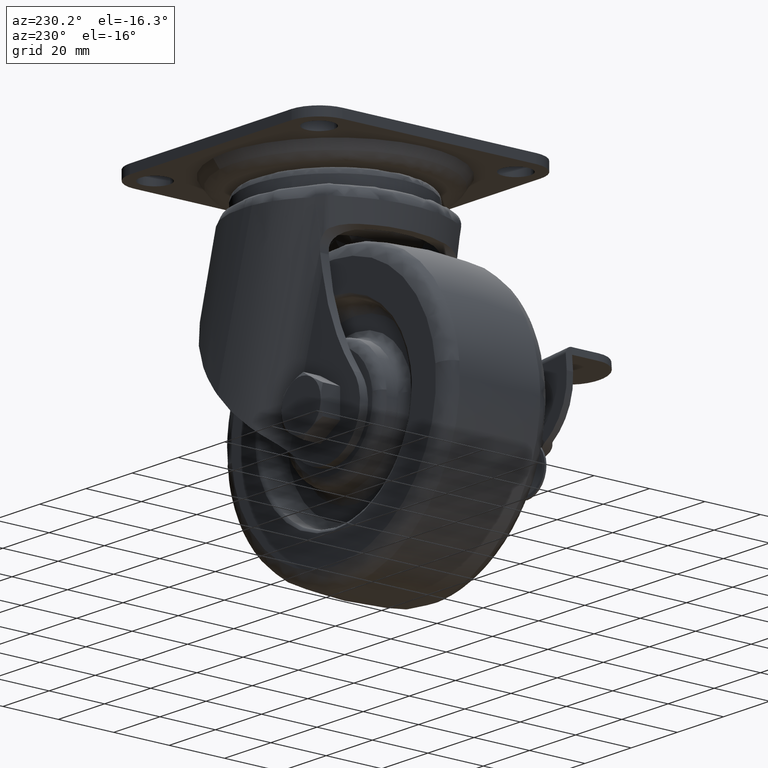
[diagram: clean part render]
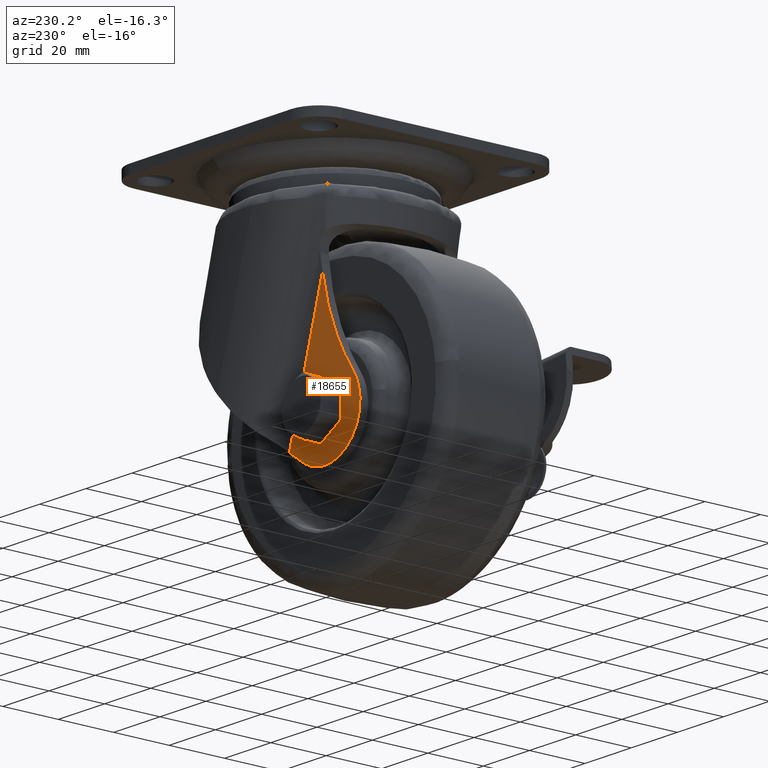
[diagram: same view with one face highlighted and labeled with its STEP entity id]
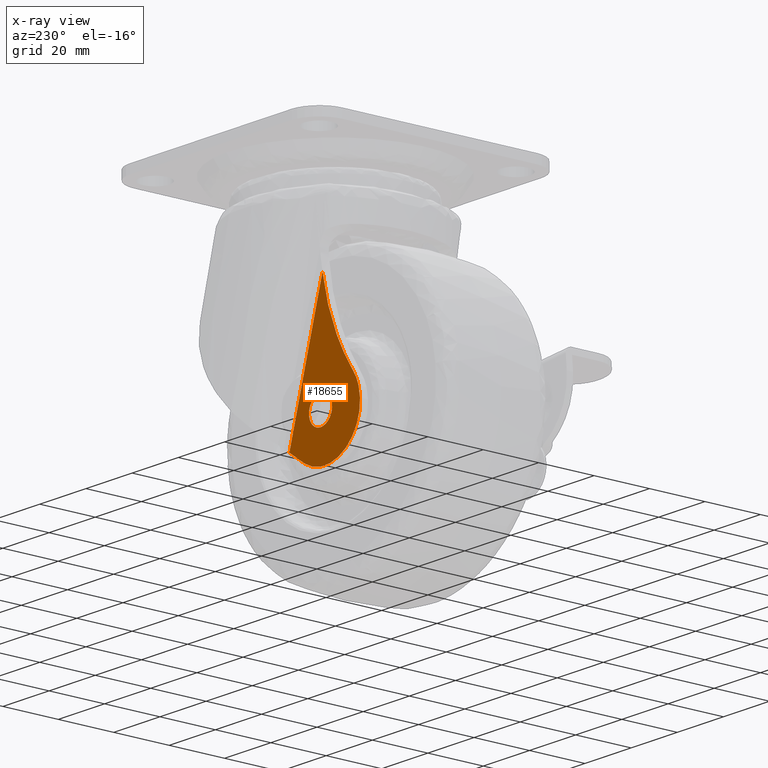
[diagram: x-ray of the same camera — body ghosted, the highlighted face saturated]
A machine part, auxiliary view. The second image highlights one B-rep face of the part: STEP entity #18655.
The next image is the same camera in x-ray: the body ghosted, the highlighted face saturated — about 0% of this face is hidden behind the body in this view.
In plain terms, the highlighted face is a freeform B-spline surface patch.
Its self-contained STEP definition (entity closure, byte-faithful):
#16529=CARTESIAN_POINT('',(-26.994555841984049,23.699999999999999,-80.393280069836919));
#16530=VERTEX_POINT('',#16529);
#16536=CARTESIAN_POINT('',(-22.0,23.699999999999999,-74.990199999999987));
#16537=VERTEX_POINT('',#16536);
#16538=CARTESIAN_POINT('',(-26.994555841984049,23.700000000000003,-80.393280069836933));
#16539=CARTESIAN_POINT('',(-27.009999999999994,23.699999999999996,-80.197043436229194));
#16540=CARTESIAN_POINT('',(-27.010000000000002,23.699999999999999,-80.000199999999992));
#16541=CARTESIAN_POINT('',(-27.009999999999998,23.700000000000003,-74.990199999999987));
#16542=CARTESIAN_POINT('',(-22.0,23.699999999999999,-74.990199999999987));
#16550=(BOUNDED_CURVE()B_SPLINE_CURVE(2,(#16538,#16539,#16540,#16541,#16542),.UNSPECIFIED.,.F.,.U.)B_SPLINE_CURVE_WITH_KNOTS((3,2,3),(0.736331300624515,0.750000000000000,1.0),.UNSPECIFIED.)CURVE()GEOMETRIC_REPRESENTATION_ITEM()RATIONAL_B_SPLINE_CURVE((0.969723356154594,0.983986122571683,1.0,0.707106781186548,1.0))REPRESENTATION_ITEM(''));
#16551=EDGE_CURVE('',#16530,#16537,#16550,.T.);
#16553=CARTESIAN_POINT('',(-17.005444158015958,23.699999999999999,-79.607119930163066));
#16554=VERTEX_POINT('',#16553);
#16555=CARTESIAN_POINT('',(-22.0,23.699999999999999,-74.990199999999987));
#16556=CARTESIAN_POINT('',(-17.368803637015994,23.699999999999992,-74.990199999999973));
#16557=CARTESIAN_POINT('',(-17.005444158015948,23.699999999999999,-79.607119930163080));
#16565=(BOUNDED_CURVE()B_SPLINE_CURVE(2,(#16555,#16556,#16557),.UNSPECIFIED.,.F.,.U.)B_SPLINE_CURVE_WITH_KNOTS((3,3),(0.0,0.236331300624515),.UNSPECIFIED.)CURVE()GEOMETRIC_REPRESENTATION_ITEM()RATIONAL_B_SPLINE_CURVE((1.0,0.723120658614864,0.969723356154595))REPRESENTATION_ITEM(''));
#16566=EDGE_CURVE('',#16537,#16554,#16565,.T.);
#16612=CARTESIAN_POINT('',(-22.0,23.699999999999999,-85.010199999999998));
#16613=VERTEX_POINT('',#16612);
#16614=CARTESIAN_POINT('',(-17.005444158015948,23.699999999999999,-79.607119930163066));
#16615=CARTESIAN_POINT('',(-16.990000000000002,23.699999999999999,-79.803356563770805));
#16616=CARTESIAN_POINT('',(-16.989999999999998,23.699999999999999,-80.000199999999992));
#16617=CARTESIAN_POINT('',(-16.989999999999995,23.700000000000003,-85.010200000000012));
#16618=CARTESIAN_POINT('',(-22.0,23.699999999999999,-85.010199999999998));
#16626=(BOUNDED_CURVE()B_SPLINE_CURVE(2,(#16614,#16615,#16616,#16617,#16618),.UNSPECIFIED.,.F.,.U.)B_SPLINE_CURVE_WITH_KNOTS((3,2,3),(0.236331300624515,0.250000000000000,0.500000000000000),.UNSPECIFIED.)CURVE()GEOMETRIC_REPRESENTATION_ITEM()RATIONAL_B_SPLINE_CURVE((0.969723356154595,0.983986122571683,1.0,0.707106781186548,1.0))REPRESENTATION_ITEM(''));
#16627=EDGE_CURVE('',#16554,#16613,#16626,.T.);
#16629=CARTESIAN_POINT('',(-22.0,23.699999999999999,-85.010199999999998));
#16630=CARTESIAN_POINT('',(-26.631196362983989,23.699999999999999,-85.010200000000026));
#16631=CARTESIAN_POINT('',(-26.994555841984049,23.700000000000003,-80.393280069836948));
#16639=(BOUNDED_CURVE()B_SPLINE_CURVE(2,(#16629,#16630,#16631),.UNSPECIFIED.,.F.,.U.)B_SPLINE_CURVE_WITH_KNOTS((3,3),(0.500000000000000,0.736331300624515),.UNSPECIFIED.)CURVE()GEOMETRIC_REPRESENTATION_ITEM()RATIONAL_B_SPLINE_CURVE((1.0,0.723120658614865,0.969723356154593))REPRESENTATION_ITEM(''));
#16640=EDGE_CURVE('',#16613,#16530,#16639,.T.);
#18030=CARTESIAN_POINT('',(-22.848104331939549,23.699999999999999,-40.233395826008397));
#18031=VERTEX_POINT('',#18030);
#18041=CARTESIAN_POINT('',(-36.138694771212847,23.699999999999999,-71.887857911865112));
#18042=VERTEX_POINT('',#18041);
#18043=CARTESIAN_POINT('',(-22.848104331939521,23.699999999999999,-40.233395826008412));
#18044=CARTESIAN_POINT('',(-25.772148349685477,23.700000000000003,-57.623048795799349));
#18045=CARTESIAN_POINT('',(-36.138695005206692,23.699999999999999,-71.887857741816688));
#18053=(BOUNDED_CURVE()B_SPLINE_CURVE(2,(#18043,#18044,#18045),.UNSPECIFIED.,.F.,.U.)CURVE()GEOMETRIC_REPRESENTATION_ITEM()QUASI_UNIFORM_CURVE()RATIONAL_B_SPLINE_CURVE((1.0,0.973455591417076,1.0))REPRESENTATION_ITEM(''));
#18054=EDGE_CURVE('',#18031,#18042,#18053,.T.);
#18177=CARTESIAN_POINT('',(-15.154456622378950,23.699999999999999,-93.997029754928505));
#18178=VERTEX_POINT('',#18177);
#18210=CARTESIAN_POINT('',(-15.154456622378950,23.699999999999999,-93.997029754928505));
#18211=CARTESIAN_POINT('',(-16.328478772490559,23.700000000000021,-94.760462994457242));
#18212=CARTESIAN_POINT('',(-18.629609485815639,23.699999999999971,-95.845009369545508));
#18213=CARTESIAN_POINT('',(-21.889834844470020,23.700000000000021,-96.494847509529947));
#18214=CARTESIAN_POINT('',(-24.305274605307059,23.699999999999982,-96.524809248768150));
#18215=CARTESIAN_POINT('',(-26.367275543384579,23.700000000000021,-96.292471943051737));
#18216=CARTESIAN_POINT('',(-28.606244652223442,23.700000000000010,-95.752046790735591));
#18217=CARTESIAN_POINT('',(-31.031919328711439,23.700000000000010,-94.696763154491634));
#18218=CARTESIAN_POINT('',(-33.414781137797341,23.699999999999900,-93.103850885481506));
#18219=CARTESIAN_POINT('',(-35.317306872206167,23.700000000000351,-91.266009947194320));
#18220=CARTESIAN_POINT('',(-36.771827063975742,23.699999999999282,-89.267504685815950));
#18221=CARTESIAN_POINT('',(-37.825129031142531,23.700000000001879,-87.284529347029419));
#18222=CARTESIAN_POINT('',(-38.494366020621669,23.699999999996120,-85.435725792129546));
#18223=CARTESIAN_POINT('',(-38.977334816531020,23.700000000003602,-83.302486148164306));
#18224=CARTESIAN_POINT('',(-39.168156286384537,23.699999999999289,-81.117967333711334));
#18225=CARTESIAN_POINT('',(-38.985859325840813,23.699999999999878,-78.709224999201197));
#18226=CARTESIAN_POINT('',(-38.479228394129208,23.700000000000099,-76.463317639517427));
#18227=CARTESIAN_POINT('',(-37.589447167334278,23.699999999999971,-74.157245300842547));
#18228=CARTESIAN_POINT('',(-36.698599230275001,23.700000000000021,-72.658128788336484));
#18229=CARTESIAN_POINT('',(-36.138694771212847,23.699999999999999,-71.887857911865112));
#18230=B_SPLINE_CURVE_WITH_KNOTS('',3,(#18210,#18211,#18212,#18213,#18214,#18215,#18216,#18217,#18218,#18219,#18220,#18221,#18222,#18223,#18224,#18225,#18226,#18227,#18228,#18229),.UNSPECIFIED.,.F.,.U.,(4,1,1,1,1,1,1,1,1,1,1,1,1,1,1,1,1,4),(0.000000052468849,4.201166714130750,7.562099683666759,9.914763185461588,11.427195829638549,13.779875860602520,16.804712799457072,19.325428628294649,22.350225437516730,24.702834360229261,26.719408615355729,29.072097242308811,30.584524941426199,33.273294258622492,35.625973747172097,37.810595954463231,40.163220983628413,43.020006741538339),.UNSPECIFIED.);
#18231=EDGE_CURVE('',#18178,#18042,#18230,.T.);
#18620=CARTESIAN_POINT('',(-40.625356645552543,23.699999999999999,-99.306878790969705));
#18621=CARTESIAN_POINT('',(-40.625356645552543,23.699999999999999,-37.423050619545982));
#18622=CARTESIAN_POINT('',(-6.974238617524200,23.699999999999999,-99.306878790969705));
#18623=CARTESIAN_POINT('',(-6.974238617524200,23.699999999999999,-37.423050619545982));
#18624=B_SPLINE_SURFACE_WITH_KNOTS('',1,1,((#18620,#18622),(#18621,#18623)),.UNSPECIFIED.,.F.,.F.,.U.,(2,2),(2,2),(0.0,61.883828171423723),(0.0,33.651118028028343),.UNSPECIFIED.);
#18625=ORIENTED_EDGE('',*,*,#18054,.F.);
#18626=CARTESIAN_POINT('',(-8.502444951745570,23.699999999999999,-89.341379131609301));
#18627=VERTEX_POINT('',#18626);
#18628=CARTESIAN_POINT('',(-22.848104331939549,23.699999999999999,-40.233395826008397));
#18629=CARTESIAN_POINT('',(-8.502444951745570,23.699999999999999,-89.341379131609301));
#18630=QUASI_UNIFORM_CURVE('',1,(#18628,#18629),.UNSPECIFIED.,.F.,.U.);
#18631=EDGE_CURVE('',#18031,#18627,#18630,.T.);
#18632=ORIENTED_EDGE('',*,*,#18631,.T.);
#18633=CARTESIAN_POINT('',(-8.502444951745556,23.699999999999999,-89.341379131609344));
#18634=CARTESIAN_POINT('',(-11.748316484264164,23.699999999999999,-91.783700645960579));
#18635=CARTESIAN_POINT('',(-15.154456622378980,23.699999999999999,-93.997029754928477));
#18643=(BOUNDED_CURVE()B_SPLINE_CURVE(2,(#18633,#18634,#18635),.UNSPECIFIED.,.F.,.U.)CURVE()GEOMETRIC_REPRESENTATION_ITEM()QUASI_UNIFORM_CURVE()RATIONAL_B_SPLINE_CURVE((1.0,0.999408001819559,1.0))REPRESENTATION_ITEM(''));
#18644=EDGE_CURVE('',#18627,#18178,#18643,.T.);
#18645=ORIENTED_EDGE('',*,*,#18644,.T.);
#18646=ORIENTED_EDGE('',*,*,#18231,.T.);
#18647=EDGE_LOOP('',(#18625,#18632,#18645,#18646));
#18648=FACE_OUTER_BOUND('',#18647,.T.);
#18649=ORIENTED_EDGE('',*,*,#16640,.F.);
#18650=ORIENTED_EDGE('',*,*,#16627,.F.);
#18651=ORIENTED_EDGE('',*,*,#16566,.F.);
#18652=ORIENTED_EDGE('',*,*,#16551,.F.);
#18653=EDGE_LOOP('',(#18649,#18650,#18651,#18652));
#18654=FACE_BOUND('',#18653,.T.);
#18655=ADVANCED_FACE('',(#18648,#18654),#18624,.T.);